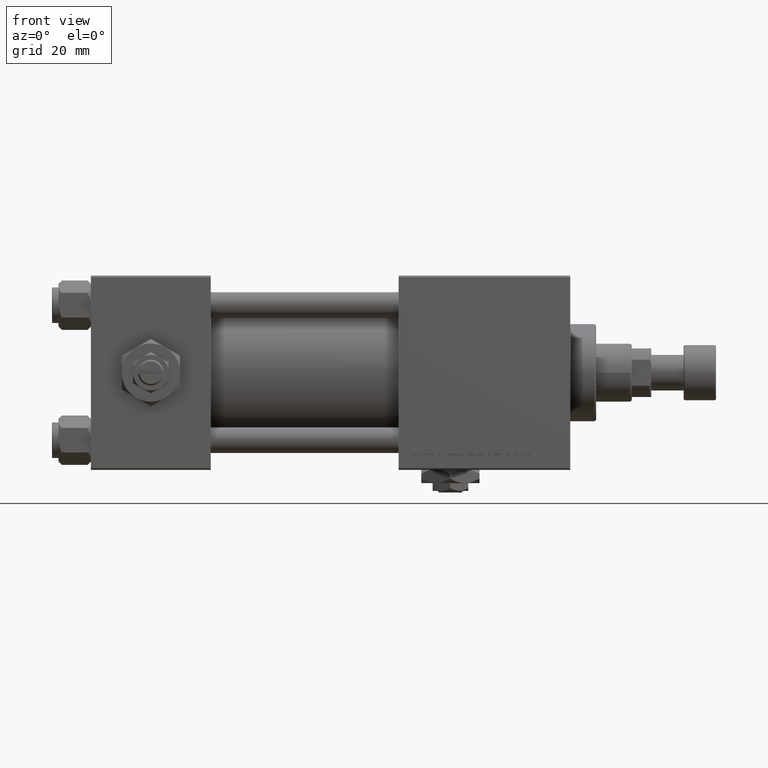
[diagram: clean part render]
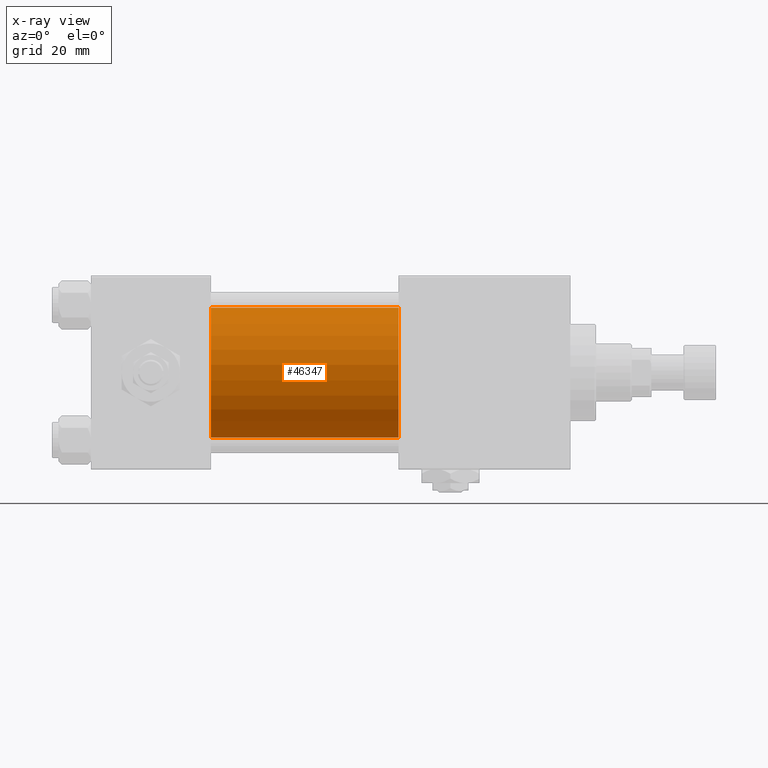
[diagram: x-ray — body ghosted, one internal face saturated and labeled with its STEP entity id]
A machine part, front view, then the same camera in x-ray: the body is ghosted and one INTERNAL B-rep face — a face not visible from any outside direction — is saturated and labeled: STEP entity #46347.
In plain terms, the highlighted cylindrical surface (partial cylindrical patch) has radius 20 mm, axis along (-1, -0, -0).
Its self-contained STEP definition (entity closure, byte-faithful):
#1237 = CARTESIAN_POINT ( 'NONE',  ( 37.00000000000000000, -2.602085213965210642E-15, 20.00000000000000000 ) ) ;
#1910 = ORIENTED_EDGE ( 'NONE', *, *, #26502, .T. ) ;
#4104 = AXIS2_PLACEMENT_3D ( 'NONE', #42558, #21515, #46295 ) ;
#5090 = AXIS2_PLACEMENT_3D ( 'NONE', #20175, #40445, #44444 ) ;
#6554 = CARTESIAN_POINT ( 'NONE',  ( 37.00000000000000000, -1.527916156705046464E-16, -20.00000000000000000 ) ) ;
#9501 = CYLINDRICAL_SURFACE ( 'NONE', #4104, 20.00000000000000000 ) ;
#10137 = AXIS2_PLACEMENT_3D ( 'NONE', #16524, #12262, #39999 ) ;
#10738 = LINE ( 'NONE', #34228, #12198 ) ;
#12198 = VECTOR ( 'NONE', #14215, 1000.000000000000000 ) ;
#12262 = DIRECTION ( 'NONE',  ( 1.000000000000000000, 0.000000000000000000, 0.000000000000000000 ) ) ;
#13106 = ORIENTED_EDGE ( 'NONE', *, *, #15119, .T. ) ;
#13765 = FACE_OUTER_BOUND ( 'NONE', #47771, .T. ) ;
#14215 = DIRECTION ( 'NONE',  ( -1.000000000000000000, -0.000000000000000000, -0.000000000000000000 ) ) ;
#14595 = CARTESIAN_POINT ( 'NONE',  ( 95.00000000000000000, -2.602085213965210642E-15, 20.00000000000000000 ) ) ;
#15119 = EDGE_CURVE ( 'NONE', #45342, #15728, #39138, .T. ) ;
#15728 = VERTEX_POINT ( 'NONE', #40225 ) ;
#16524 = CARTESIAN_POINT ( 'NONE',  ( 37.00000000000000000, -2.602085213965210642E-15, 0.000000000000000000 ) ) ;
#18944 = VERTEX_POINT ( 'NONE', #6554 ) ;
#19933 = VERTEX_POINT ( 'NONE', #1237 ) ;
#20175 = CARTESIAN_POINT ( 'NONE',  ( 95.00000000000000000, -2.602085213965210642E-15, 0.000000000000000000 ) ) ;
#21515 = DIRECTION ( 'NONE',  ( -1.000000000000000000, -0.000000000000000000, -0.000000000000000000 ) ) ;
#23134 = CARTESIAN_POINT ( 'NONE',  ( 95.00000000000000000, -2.602085213965210642E-15, 20.00000000000000000 ) ) ;
#25338 = ORIENTED_EDGE ( 'NONE', *, *, #44164, .F. ) ;
#26502 = EDGE_CURVE ( 'NONE', #15728, #18944, #10738, .T. ) ;
#30492 = ORIENTED_EDGE ( 'NONE', *, *, #34586, .F. ) ;
#34228 = CARTESIAN_POINT ( 'NONE',  ( 95.00000000000000000, -1.527916156705046464E-16, -20.00000000000000000 ) ) ;
#34586 = EDGE_CURVE ( 'NONE', #45342, #19933, #38611, .T. ) ;
#37852 = VECTOR ( 'NONE', #39398, 1000.000000000000000 ) ;
#38611 = LINE ( 'NONE', #23134, #37852 ) ;
#39138 = CIRCLE ( 'NONE', #5090, 20.00000000000000000 ) ;
#39398 = DIRECTION ( 'NONE',  ( -1.000000000000000000, -0.000000000000000000, -0.000000000000000000 ) ) ;
#39999 = DIRECTION ( 'NONE',  ( 0.000000000000000000, 0.000000000000000000, -1.000000000000000000 ) ) ;
#40225 = CARTESIAN_POINT ( 'NONE',  ( 95.00000000000000000, -1.527916156705046464E-16, -20.00000000000000000 ) ) ;
#40445 = DIRECTION ( 'NONE',  ( 1.000000000000000000, 0.000000000000000000, 0.000000000000000000 ) ) ;
#42558 = CARTESIAN_POINT ( 'NONE',  ( 95.00000000000000000, -2.602085213965210642E-15, 0.000000000000000000 ) ) ;
#44164 = EDGE_CURVE ( 'NONE', #19933, #18944, #51855, .T. ) ;
#44444 = DIRECTION ( 'NONE',  ( 0.000000000000000000, 0.000000000000000000, -1.000000000000000000 ) ) ;
#45342 = VERTEX_POINT ( 'NONE', #14595 ) ;
#46295 = DIRECTION ( 'NONE',  ( 0.000000000000000000, 0.000000000000000000, 1.000000000000000000 ) ) ;
#46347 = ADVANCED_FACE ( 'NONE', ( #13765 ), #9501, .F. ) ;
#47771 = EDGE_LOOP ( 'NONE', ( #13106, #1910, #25338, #30492 ) ) ;
#51855 = CIRCLE ( 'NONE', #10137, 20.00000000000000000 ) ;